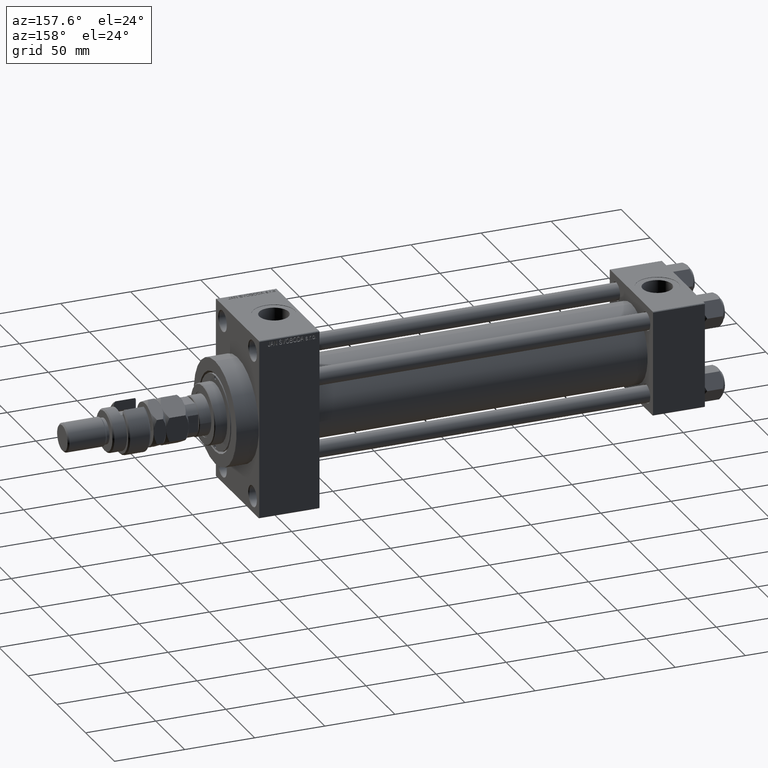
[diagram: clean part render]
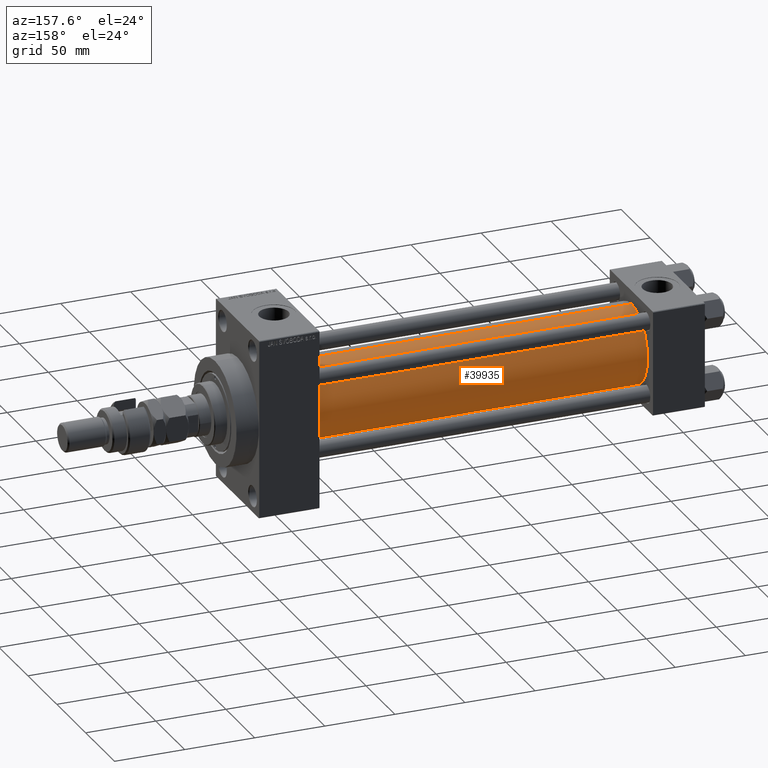
[diagram: same view with one face highlighted and labeled with its STEP entity id]
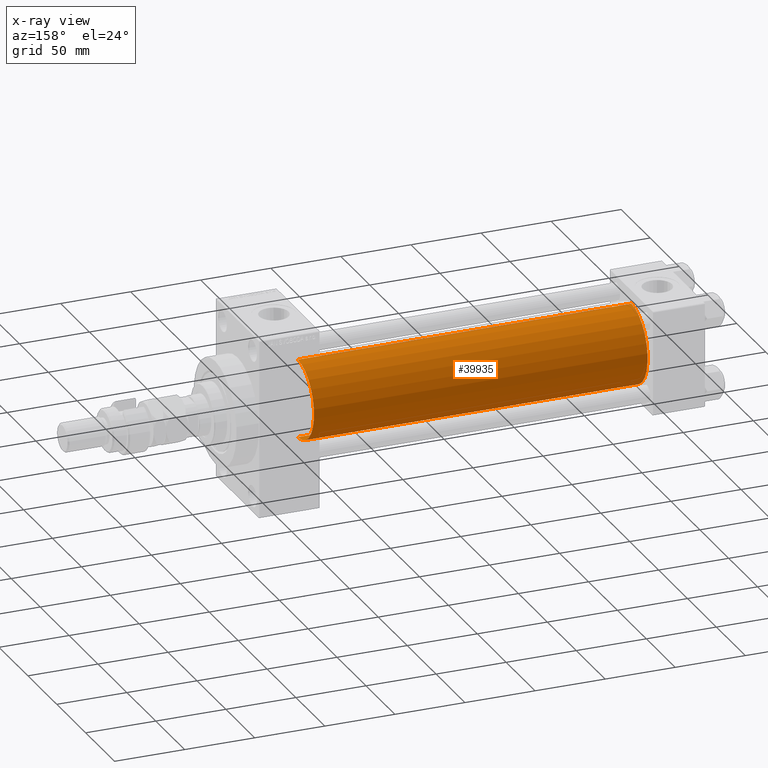
[diagram: x-ray of the same camera — body ghosted, the highlighted face saturated]
A machine part, auxiliary view. The second image highlights one B-rep face of the part: STEP entity #39935.
The next image is the same camera in x-ray: the body ghosted, the highlighted face saturated — about 0% of this face is hidden behind the body in this view.
In plain terms, the highlighted cylindrical surface (partial cylindrical patch) has radius 28 mm, axis along (-1, -0, -0).
Its self-contained STEP definition (entity closure, byte-faithful):
#149 = DIRECTION ( 'NONE',  ( 1.000000000000000000, -0.000000000000000000, 0.000000000000000000 ) ) ;
#824 = FACE_OUTER_BOUND ( 'NONE', #19935, .T. ) ;
#1136 = EDGE_CURVE ( 'NONE', #23385, #21418, #15569, .T. ) ;
#1249 = DIRECTION ( 'NONE',  ( 1.000000000000000000, 0.000000000000000000, 0.000000000000000000 ) ) ;
#1836 = VECTOR ( 'NONE', #16670, 1000.000000000000000 ) ;
#3633 = DIRECTION ( 'NONE',  ( -1.000000000000000000, -0.000000000000000000, -0.000000000000000000 ) ) ;
#4724 = LINE ( 'NONE', #23808, #1836 ) ;
#6786 = DIRECTION ( 'NONE',  ( 0.000000000000000000, 0.000000000000000000, -1.000000000000000000 ) ) ;
#8921 = VERTEX_POINT ( 'NONE', #43290 ) ;
#13333 = ORIENTED_EDGE ( 'NONE', *, *, #1136, .F. ) ;
#15569 = CIRCLE ( 'NONE', #45638, 28.00000000000000000 ) ;
#16670 = DIRECTION ( 'NONE',  ( -1.000000000000000000, -0.000000000000000000, -0.000000000000000000 ) ) ;
#16916 = CARTESIAN_POINT ( 'NONE',  ( 274.9999999999999432, 8.269258236473784371E-16, -28.00000000000000000 ) ) ;
#17093 = AXIS2_PLACEMENT_3D ( 'NONE', #23716, #3633, #47102 ) ;
#18529 = ORIENTED_EDGE ( 'NONE', *, *, #46890, .T. ) ;
#19935 = EDGE_LOOP ( 'NONE', ( #13333, #23545, #18529, #47944 ) ) ;
#20748 = VERTEX_POINT ( 'NONE', #21805 ) ;
#21418 = VERTEX_POINT ( 'NONE', #35586 ) ;
#21805 = CARTESIAN_POINT ( 'NONE',  ( 37.00000000000000711, 8.269258236473784371E-16, -28.00000000000000000 ) ) ;
#22844 = CARTESIAN_POINT ( 'NONE',  ( 274.9999999999999432, -2.602085213965210642E-15, 28.00000000000000000 ) ) ;
#23300 = EDGE_CURVE ( 'NONE', #23385, #20748, #4724, .T. ) ;
#23385 = VERTEX_POINT ( 'NONE', #16916 ) ;
#23545 = ORIENTED_EDGE ( 'NONE', *, *, #23300, .T. ) ;
#23716 = CARTESIAN_POINT ( 'NONE',  ( 274.9999999999999432, -2.602085213965210642E-15, 0.000000000000000000 ) ) ;
#23808 = CARTESIAN_POINT ( 'NONE',  ( 274.9999999999999432, 8.269258236473784371E-16, -28.00000000000000000 ) ) ;
#24373 = CARTESIAN_POINT ( 'NONE',  ( 274.9999999999999432, -2.602085213965210642E-15, 0.000000000000000000 ) ) ;
#26170 = AXIS2_PLACEMENT_3D ( 'NONE', #35482, #149, #35231 ) ;
#27172 = LINE ( 'NONE', #22844, #29849 ) ;
#29849 = VECTOR ( 'NONE', #38613, 1000.000000000000000 ) ;
#31858 = CYLINDRICAL_SURFACE ( 'NONE', #17093, 28.00000000000000000 ) ;
#33099 = EDGE_CURVE ( 'NONE', #21418, #8921, #27172, .T. ) ;
#35231 = DIRECTION ( 'NONE',  ( 0.000000000000000000, 0.000000000000000000, 1.000000000000000000 ) ) ;
#35482 = CARTESIAN_POINT ( 'NONE',  ( 37.00000000000000711, -2.602085213965210642E-15, 0.000000000000000000 ) ) ;
#35586 = CARTESIAN_POINT ( 'NONE',  ( 274.9999999999999432, -2.602085213965210642E-15, 28.00000000000000000 ) ) ;
#38613 = DIRECTION ( 'NONE',  ( -1.000000000000000000, -0.000000000000000000, -0.000000000000000000 ) ) ;
#39935 = ADVANCED_FACE ( 'NONE', ( #824 ), #31858, .T. ) ;
#40798 = CIRCLE ( 'NONE', #26170, 28.00000000000000000 ) ;
#43290 = CARTESIAN_POINT ( 'NONE',  ( 37.00000000000000711, -2.602085213965210642E-15, 28.00000000000000000 ) ) ;
#45638 = AXIS2_PLACEMENT_3D ( 'NONE', #24373, #1249, #6786 ) ;
#46890 = EDGE_CURVE ( 'NONE', #20748, #8921, #40798, .T. ) ;
#47102 = DIRECTION ( 'NONE',  ( 0.000000000000000000, 0.000000000000000000, 1.000000000000000000 ) ) ;
#47944 = ORIENTED_EDGE ( 'NONE', *, *, #33099, .F. ) ;